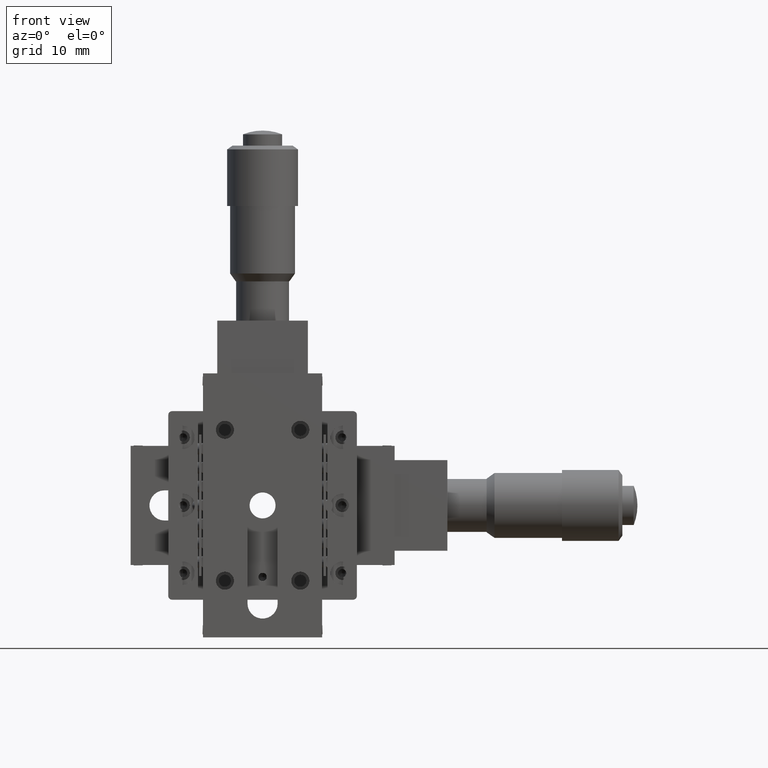
[diagram: clean part render]
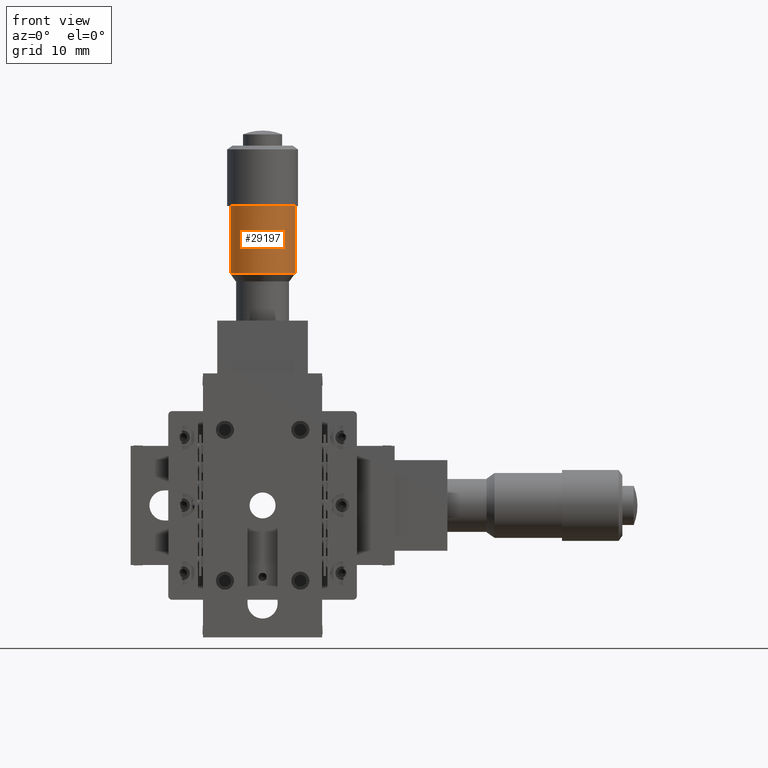
[diagram: same view with one face highlighted and labeled with its STEP entity id]
A machine part, front view. The second image highlights one B-rep face of the part: STEP entity #29197.
In plain terms, the highlighted cylindrical surface (edge-blend (fillet) strip) has radius 4.3 mm, axis along (0, 0, 1).
Its self-contained STEP definition (entity closure, byte-faithful):
#39 = ORIENTED_EDGE ( 'NONE', *, *, #48829, .T. ) ;
#1731 = DIRECTION ( 'NONE',  ( 1.110223024626042000E-016, 1.762506864451433600E-016, 1.000000000000000000 ) ) ;
#3116 = CARTESIAN_POINT ( 'NONE',  ( -4.298482493079164100, 6.314754140494766700, 36.58011535403744600 ) ) ;
#3125 = DIRECTION ( 'NONE',  ( 0.9997107461728599300, -0.02405044670071193900, 0.0000000000000000000 ) ) ;
#3372 = VERTEX_POINT ( 'NONE', #22847 ) ;
#4050 = CARTESIAN_POINT ( 'NONE',  ( -4.299358902071583400, 6.274273284386517000, 35.89705032987758000 ) ) ;
#4770 = LINE ( 'NONE', #52709, #46363 ) ;
#5108 = CARTESIAN_POINT ( 'NONE',  ( -4.299518700135160500, 6.264334649978664500, 36.10190665839508000 ) ) ;
#5221 = FACE_OUTER_BOUND ( 'NONE', #25227, .T. ) ;
#5534 = LINE ( 'NONE', #61854, #18273 ) ;
#6911 = LINE ( 'NONE', #50412, #65570 ) ;
#7591 = CIRCLE ( 'NONE', #32435, 4.300000000000006000 ) ;
#8164 = CARTESIAN_POINT ( 'NONE',  ( 3.151573982792441200E-014, 6.199999999999929100, 83.73849299920763700 ) ) ;
#9271 = CARTESIAN_POINT ( 'NONE',  ( 2.584370171871278000E-014, 6.199999999999909600, 30.74746992999999400 ) ) ;
#9753 = CARTESIAN_POINT ( 'NONE',  ( -4.298771640651713400, 6.304868309213726500, 35.69321220332511800 ) ) ;
#11687 = AXIS2_PLACEMENT_3D ( 'NONE', #12798, #39886, #17353 ) ;
#12798 = CARTESIAN_POINT ( 'NONE',  ( 2.689873772513740700E-014, 6.199999999999922000, 39.69746992999999000 ) ) ;
#12873 = VECTOR ( 'NONE', #18392, 1000.000000000000000 ) ;
#13878 = ORIENTED_EDGE ( 'NONE', *, *, #63962, .F. ) ;
#15160 = VERTEX_POINT ( 'NONE', #30782 ) ;
#15353 = VERTEX_POINT ( 'NONE', #5108 ) ;
#15936 = ORIENTED_EDGE ( 'NONE', *, *, #62510, .T. ) ;
#16632 = DIRECTION ( 'NONE',  ( 1.110223024626042000E-016, 1.762506864451433600E-016, 1.000000000000000000 ) ) ;
#16741 = DIRECTION ( 'NONE',  ( 1.110223024626042000E-016, 1.762506864451433600E-016, 1.000000000000000000 ) ) ;
#17353 = DIRECTION ( 'NONE',  ( 0.9995725314435851500, -0.02923618277858836300, 0.0000000000000000000 ) ) ;
#17535 = B_SPLINE_CURVE_WITH_KNOTS ( 'NONE', 3,
 ( #69899, #20428, #37307, #58918, #25674, #4050, #63703, #42026, #9753, #26384 ),
 .UNSPECIFIED., .F., .F.,
 ( 4, 2, 2, 2, 4 ),
 ( 0.0000000000000000000, 0.1829254814170808700, 0.2743882221256384000, 0.3658509628341959900, 0.7317019256683968700 ),
 .UNSPECIFIED. ) ;
#18273 = VECTOR ( 'NONE', #40434, 1000.000000000000000 ) ;
#18324 = CARTESIAN_POINT ( 'NONE',  ( -4.298161888975660500, 6.325715532416915600, 36.62222717098816100 ) ) ;
#18392 = DIRECTION ( 'NONE',  ( 5.173820016161969200E-018, 1.793466154370806700E-016, 1.000000000000000000 ) ) ;
#20428 = CARTESIAN_POINT ( 'NONE',  ( -4.299509497574321800, 6.264949661988941500, 36.05122715350817200 ) ) ;
#20653 = EDGE_CURVE ( 'NONE', #48937, #66292, #41710, .T. ) ;
#20679 = DIRECTION ( 'NONE',  ( 1.110223024626042000E-016, 1.762506864451433600E-016, 1.000000000000000000 ) ) ;
#21529 = AXIS2_PLACEMENT_3D ( 'NONE', #9271, #20679, #69182 ) ;
#22847 = CARTESIAN_POINT ( 'NONE',  ( -4.298161881797282600, 6.325715702572403600, 35.61349922465713300 ) ) ;
#24977 = CARTESIAN_POINT ( 'NONE',  ( 2.655585879987475700E-014, 6.199999999999909600, 37.14221612708995900 ) ) ;
#25227 = EDGE_LOOP ( 'NONE', ( #26027, #46081, #39, #13878, #26322, #61597, #15936, #60359, #30571, #45051, #48031 ) ) ;
#25618 = EDGE_CURVE ( 'NONE', #66292, #15160, #50229, .T. ) ;
#25674 = CARTESIAN_POINT ( 'NONE',  ( -4.299421812216579900, 6.270537722050231200, 35.93747706129512000 ) ) ;
#25756 = EDGE_CURVE ( 'NONE', #56409, #3372, #6911, .T. ) ;
#26027 = ORIENTED_EDGE ( 'NONE', *, *, #25756, .F. ) ;
#26322 = ORIENTED_EDGE ( 'NONE', *, *, #20653, .T. ) ;
#26384 = CARTESIAN_POINT ( 'NONE',  ( -4.298161881797282600, 6.325715702572403600, 35.61349922465713300 ) ) ;
#26777 = CARTESIAN_POINT ( 'NONE',  ( -4.298161888975660500, 6.325715532416915600, 36.62222717098816100 ) ) ;
#28508 = CARTESIAN_POINT ( 'NONE',  ( 2.661054066632028400E-014, 6.199999999999909600, 37.23787676788948900 ) ) ;
#28647 = CARTESIAN_POINT ( 'NONE',  ( 4.296902805728513500, 6.036824394829378300, 37.14221612708995900 ) ) ;
#29197 = ADVANCED_FACE ( 'NONE', ( #5221 ), #69901, .T. ) ;
#29512 = CARTESIAN_POINT ( 'NONE',  ( -4.299194531600721600, 6.283372684705201800, 36.40825967323662800 ) ) ;
#29887 = AXIS2_PLACEMENT_3D ( 'NONE', #8164, #35709, #68537 ) ;
#30193 = CARTESIAN_POINT ( 'NONE',  ( -4.299475642102383000, 6.267207786158835800, 36.22701718947349300 ) ) ;
#30571 = ORIENTED_EDGE ( 'NONE', *, *, #34750, .F. ) ;
#30782 = CARTESIAN_POINT ( 'NONE',  ( 4.298161885207441900, 6.074284414051990500, 37.23787676788948900 ) ) ;
#31171 = CARTESIAN_POINT ( 'NONE',  ( 4.298161885207449000, 6.074284414051991400, 39.69746992999999000 ) ) ;
#32185 = EDGE_CURVE ( 'NONE', #39549, #15353, #51366, .T. ) ;
#32435 = AXIS2_PLACEMENT_3D ( 'NONE', #24977, #57273, #3125 ) ;
#33496 = VECTOR ( 'NONE', #16741, 1000.000000000000000 ) ;
#34750 = EDGE_CURVE ( 'NONE', #39549, #45208, #5534, .T. ) ;
#35709 = DIRECTION ( 'NONE',  ( 1.110223024626042000E-016, 1.762506864451433600E-016, 1.000000000000000000 ) ) ;
#37307 = CARTESIAN_POINT ( 'NONE',  ( -4.299489326010756500, 6.266301581300827400, 36.00756061587681200 ) ) ;
#38367 = CARTESIAN_POINT ( 'NONE',  ( 4.298161885207453500, 6.074284414051999400, 83.73849299920763700 ) ) ;
#38615 = LINE ( 'NONE', #38367, #33496 ) ;
#38773 = EDGE_CURVE ( 'NONE', #56409, #65871, #43749, .T. ) ;
#39549 = VERTEX_POINT ( 'NONE', #26777 ) ;
#39886 = DIRECTION ( 'NONE',  ( 1.110223024626042000E-016, 1.762506864451433600E-016, 1.000000000000000000 ) ) ;
#40434 = DIRECTION ( 'NONE',  ( 1.110223024626042000E-016, 1.762506864451433600E-016, 1.000000000000000000 ) ) ;
#41710 = LINE ( 'NONE', #28647, #12873 ) ;
#42026 = CARTESIAN_POINT ( 'NONE',  ( -4.299084991811114700, 6.289292834810155800, 35.77487089155306400 ) ) ;
#43749 = CIRCLE ( 'NONE', #21529, 4.300000000000006000 ) ;
#44458 = CARTESIAN_POINT ( 'NONE',  ( -4.298161885207395700, 6.325715585947839300, 30.74746992999999400 ) ) ;
#45051 = ORIENTED_EDGE ( 'NONE', *, *, #32185, .T. ) ;
#45208 = VERTEX_POINT ( 'NONE', #52626 ) ;
#45869 = CARTESIAN_POINT ( 'NONE',  ( -4.299507446936222400, 6.265086707218310700, 36.15591545931626900 ) ) ;
#46081 = ORIENTED_EDGE ( 'NONE', *, *, #38773, .T. ) ;
#46363 = VECTOR ( 'NONE', #68913, 1000.000000000000000 ) ;
#48031 = ORIENTED_EDGE ( 'NONE', *, *, #60087, .T. ) ;
#48829 = EDGE_CURVE ( 'NONE', #65871, #65050, #4770, .T. ) ;
#48937 = VERTEX_POINT ( 'NONE', #54358 ) ;
#49604 = AXIS2_PLACEMENT_3D ( 'NONE', #28508, #16632, #66765 ) ;
#50229 = CIRCLE ( 'NONE', #49604, 4.300000000000014000 ) ;
#50412 = CARTESIAN_POINT ( 'NONE',  ( -4.298161885207391300, 6.325715585947859800, 83.73849299920763700 ) ) ;
#51366 = B_SPLINE_CURVE_WITH_KNOTS ( 'NONE', 3,
 ( #18324, #3116, #57261, #61815, #29512, #62769, #62532, #67520, #30193, #45869, #56791 ),
 .UNSPECIFIED., .F., .F.,
 ( 4, 2, 2, 2, 1, 4 ),
 ( 0.3650545863494868400, 0.5237909397621027800, 0.6825272931747186100, 0.7618954698810389600, 0.8412636465873593000, 1.000000000000000000 ),
 .UNSPECIFIED. ) ;
#52626 = CARTESIAN_POINT ( 'NONE',  ( -4.298161885207388600, 6.325715585947850900, 39.69746992999999000 ) ) ;
#52709 = CARTESIAN_POINT ( 'NONE',  ( 4.298161885207453500, 6.074284414051999400, 83.73849299920763700 ) ) ;
#52854 = EDGE_CURVE ( 'NONE', #45208, #62785, #66634, .T. ) ;
#54358 = CARTESIAN_POINT ( 'NONE',  ( 4.296902805728513500, 6.036824394829378300, 37.14221612708995900 ) ) ;
#56409 = VERTEX_POINT ( 'NONE', #44458 ) ;
#56791 = CARTESIAN_POINT ( 'NONE',  ( -4.299518700135160500, 6.264334649978664500, 36.10190665839508000 ) ) ;
#56909 = CARTESIAN_POINT ( 'NONE',  ( 4.298161885207448100, 6.074284414051979800, 30.74746992999999400 ) ) ;
#57261 = CARTESIAN_POINT ( 'NONE',  ( -4.298724953313792300, 6.304987535272855000, 36.53535278307619900 ) ) ;
#57273 = DIRECTION ( 'NONE',  ( 1.110223024626042000E-016, 1.762506864451433600E-016, 1.000000000000000000 ) ) ;
#58526 = CARTESIAN_POINT ( 'NONE',  ( 4.296902805728513500, 6.036824394829378300, 37.23787676788948900 ) ) ;
#58918 = CARTESIAN_POINT ( 'NONE',  ( -4.299439487127691500, 6.269434772037518800, 35.95258026031312000 ) ) ;
#60087 = EDGE_CURVE ( 'NONE', #15353, #3372, #17535, .T. ) ;
#60359 = ORIENTED_EDGE ( 'NONE', *, *, #52854, .F. ) ;
#61597 = ORIENTED_EDGE ( 'NONE', *, *, #25618, .T. ) ;
#61815 = CARTESIAN_POINT ( 'NONE',  ( -4.299071530591043600, 6.289680441941965400, 36.45123226953234800 ) ) ;
#61854 = CARTESIAN_POINT ( 'NONE',  ( -4.298161885207391300, 6.325715585947859800, 83.73849299920763700 ) ) ;
#62510 = EDGE_CURVE ( 'NONE', #15160, #62785, #38615, .T. ) ;
#62532 = CARTESIAN_POINT ( 'NONE',  ( -4.299371041534885600, 6.273556249581610600, 36.31743757126597000 ) ) ;
#62769 = CARTESIAN_POINT ( 'NONE',  ( -4.299330265894085700, 6.275930369695287500, 36.34243226950731300 ) ) ;
#62785 = VERTEX_POINT ( 'NONE', #31171 ) ;
#63455 = CARTESIAN_POINT ( 'NONE',  ( 4.298161885207448100, 6.074284414051991400, 37.14221612708995900 ) ) ;
#63703 = CARTESIAN_POINT ( 'NONE',  ( -4.299320433775018400, 6.276487703568413700, 35.87675521470772100 ) ) ;
#63962 = EDGE_CURVE ( 'NONE', #48937, #65050, #7591, .T. ) ;
#65050 = VERTEX_POINT ( 'NONE', #63455 ) ;
#65570 = VECTOR ( 'NONE', #1731, 1000.000000000000000 ) ;
#65871 = VERTEX_POINT ( 'NONE', #56909 ) ;
#66292 = VERTEX_POINT ( 'NONE', #58526 ) ;
#66634 = CIRCLE ( 'NONE', #11687, 4.300000000000006000 ) ;
#66765 = DIRECTION ( 'NONE',  ( 0.9948952906140942100, 0.1009126390195849800, 0.0000000000000000000 ) ) ;
#67520 = CARTESIAN_POINT ( 'NONE',  ( -4.299417012248877500, 6.270818284547183400, 36.28325171279388400 ) ) ;
#68537 = DIRECTION ( 'NONE',  ( 0.9995725314435851500, -0.02923618277858836300, 0.0000000000000000000 ) ) ;
#68913 = DIRECTION ( 'NONE',  ( 1.110223024626042000E-016, 1.762506864451433600E-016, 1.000000000000000000 ) ) ;
#69182 = DIRECTION ( 'NONE',  ( 0.9995725314435851500, -0.02923618277858836300, 0.0000000000000000000 ) ) ;
#69899 = CARTESIAN_POINT ( 'NONE',  ( -4.299518700135160500, 6.264334649978664500, 36.10190665839508000 ) ) ;
#69901 = CYLINDRICAL_SURFACE ( 'NONE', #29887, 4.300000000000006000 ) ;